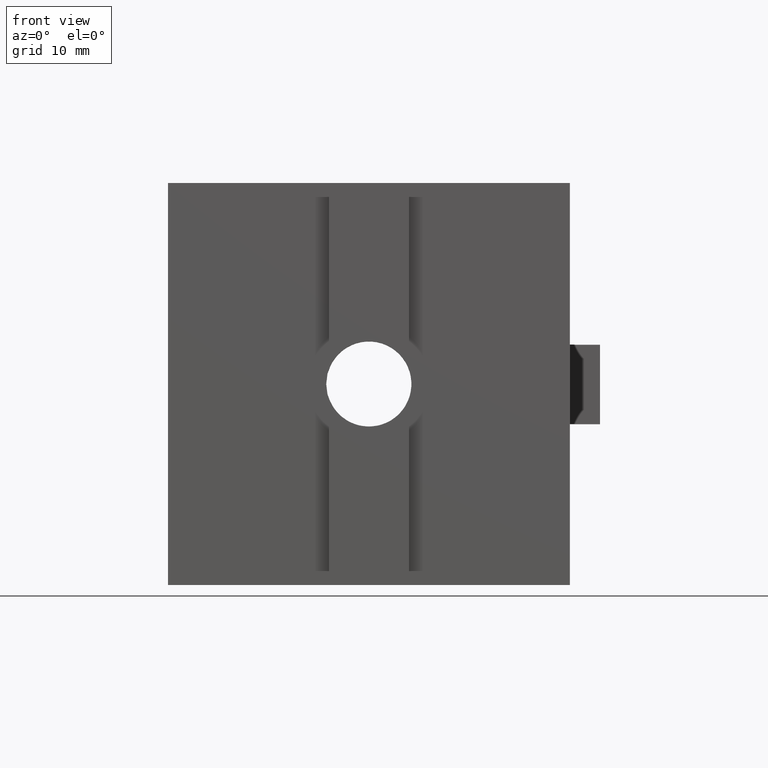
[diagram: clean part render]
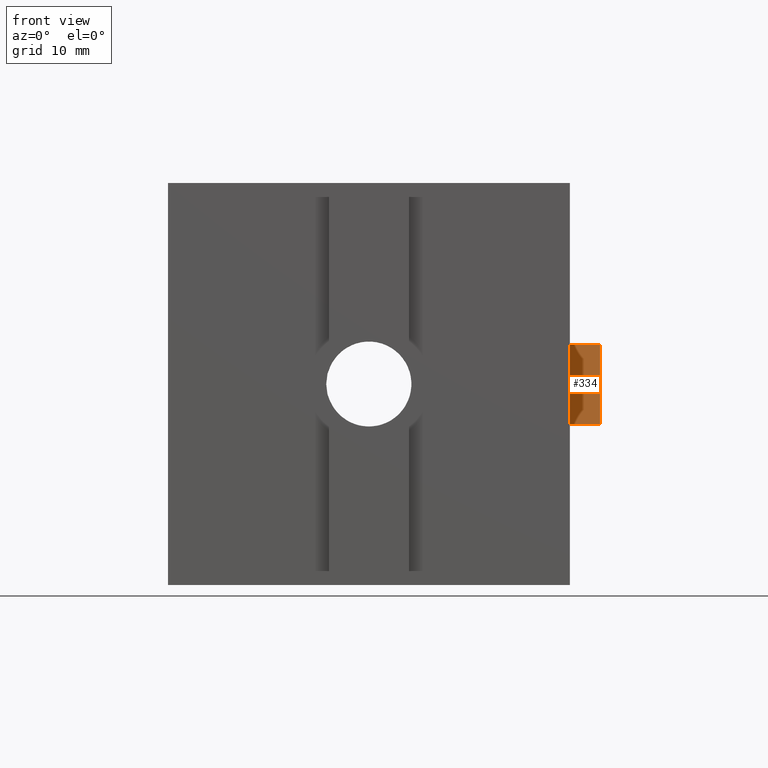
[diagram: same view with one face highlighted and labeled with its STEP entity id]
A machine part, front view. The second image highlights one B-rep face of the part: STEP entity #334.
In plain terms, the highlighted planar face has unit normal (0, -1, 0).
Its self-contained STEP definition (entity closure, byte-faithful):
#295=CARTESIAN_POINT('',(19.999993649920270,9.499993450882130,0.0));
#296=DIRECTION('',(0.0,-1.0,0.0));
#297=DIRECTION('',(1.0,0.0,0.0));
#298=AXIS2_PLACEMENT_3D('',#295,#296,#297);
#299=PLANE('',#298);
#300=CARTESIAN_POINT('',(19.999993649920270,9.499993450882130,15.999996447936155));
#301=VERTEX_POINT('',#300);
#302=CARTESIAN_POINT('',(19.999993649920270,9.499993450882130,23.902821791854763));
#303=VERTEX_POINT('',#302);
#304=CARTESIAN_POINT('',(19.999993649920270,9.499993450882130,15.999996447936155));
#305=DIRECTION('',(0.0,0.0,1.0));
#306=VECTOR('',#305,7.902825343918607);
#307=LINE('',#304,#306);
#308=EDGE_CURVE('',#301,#303,#307,.T.);
#309=ORIENTED_EDGE('',*,*,#308,.F.);
#310=CARTESIAN_POINT('',(22.999992983908470,9.499993450882130,15.999996447936155));
#311=VERTEX_POINT('',#310);
#312=CARTESIAN_POINT('',(19.999993649920270,9.499993450882130,15.999996447936155));
#313=DIRECTION('',(1.0,0.0,0.0));
#314=VECTOR('',#313,2.999999333988200);
#315=LINE('',#312,#314);
#316=EDGE_CURVE('',#301,#311,#315,.T.);
#317=ORIENTED_EDGE('',*,*,#316,.T.);
#318=CARTESIAN_POINT('',(22.999992983908470,9.499993450882130,23.902821791854763));
#319=VERTEX_POINT('',#318);
#320=CARTESIAN_POINT('',(22.999992983908470,9.499993450882130,15.999996447936155));
#321=DIRECTION('',(0.0,0.0,1.0));
#322=VECTOR('',#321,7.902825343918607);
#323=LINE('',#320,#322);
#324=EDGE_CURVE('',#311,#319,#323,.T.);
#325=ORIENTED_EDGE('',*,*,#324,.T.);
#326=CARTESIAN_POINT('',(19.999993649920270,9.499993450882130,23.902821791854763));
#327=DIRECTION('',(1.0,0.0,0.0));
#328=VECTOR('',#327,2.999999333988200);
#329=LINE('',#326,#328);
#330=EDGE_CURVE('',#303,#319,#329,.T.);
#331=ORIENTED_EDGE('',*,*,#330,.F.);
#332=EDGE_LOOP('',(#309,#317,#325,#331));
#333=FACE_OUTER_BOUND('',#332,.T.);
#334=ADVANCED_FACE('',(#333),#299,.T.);